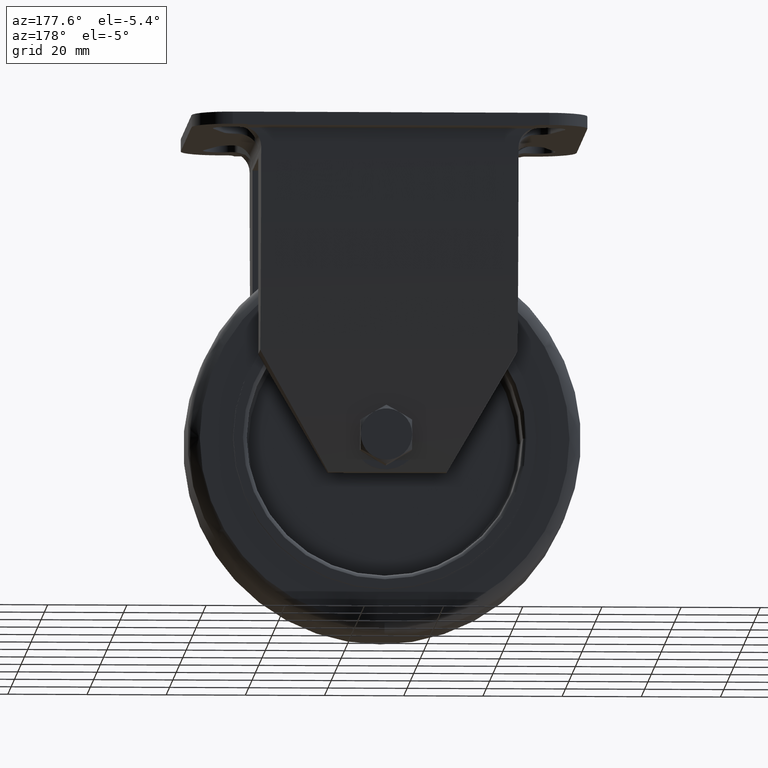
[diagram: clean part render]
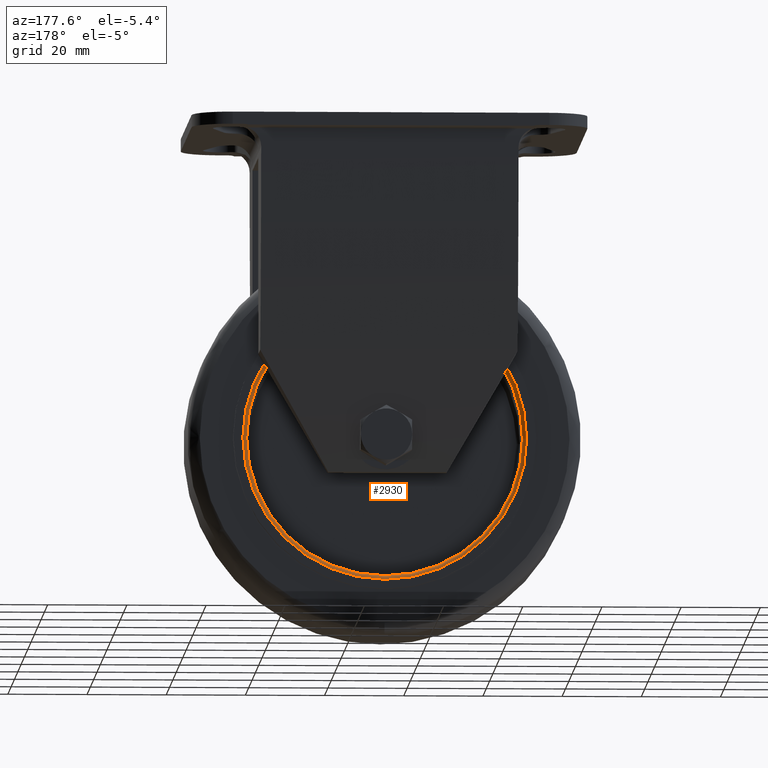
[diagram: same view with one face highlighted and labeled with its STEP entity id]
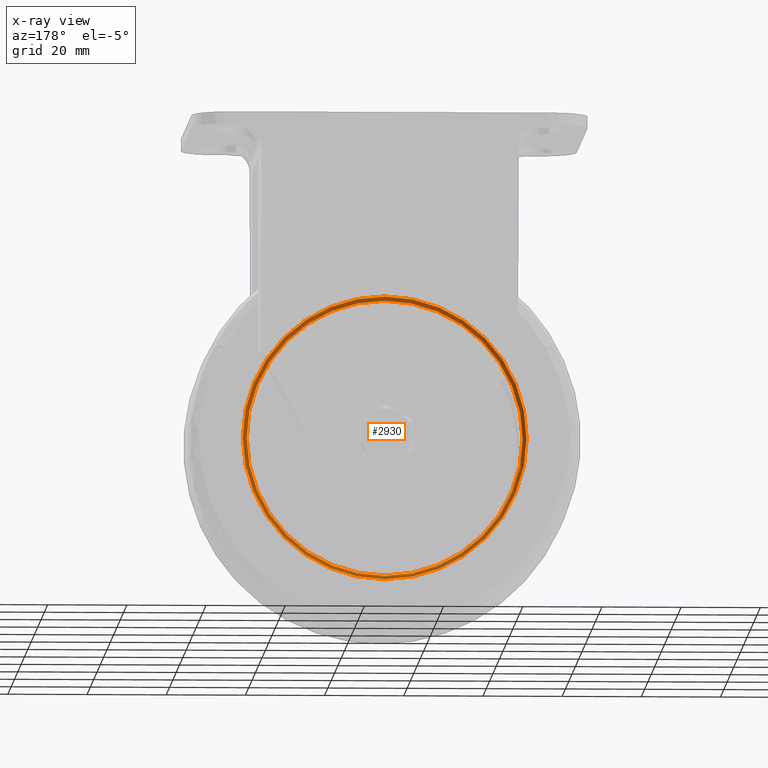
[diagram: x-ray of the same camera — body ghosted, the highlighted face saturated]
A machine part, auxiliary view. The second image highlights one B-rep face of the part: STEP entity #2930.
The next image is the same camera in x-ray: the body ghosted, the highlighted face saturated — about 0% of this face is hidden behind the body in this view.
In plain terms, the highlighted face is a freeform B-spline surface patch.
Its self-contained STEP definition (entity closure, byte-faithful):
#2605=CARTESIAN_POINT('',(-13.668300648926364,15.999999999937856,-80.075077357231748));
#2606=VERTEX_POINT('',#2605);
#2607=CARTESIAN_POINT('',(-85.331678570328222,15.999999999937819,-80.075077357231748));
#2608=VERTEX_POINT('',#2607);
#2609=CARTESIAN_POINT('',(-49.499989609626937,15.999999999937838,-80.075077357231748));
#2610=DIRECTION('',(-5.345521E-016,1.0,-1.224647E-016));
#2611=DIRECTION('',(-1.0,-5.345521E-016,6.546375E-032));
#2612=AXIS2_PLACEMENT_3D('',#2609,#2610,#2611);
#2613=CIRCLE('',#2612,35.831688960700575);
#2614=EDGE_CURVE('',#2606,#2608,#2613,.T.);
#2616=CARTESIAN_POINT('',(-49.499989609626937,15.999999999937838,-80.075077357231748));
#2617=DIRECTION('',(-5.345521E-016,1.0,-1.224647E-016));
#2618=DIRECTION('',(-1.0,-5.345521E-016,6.546375E-032));
#2619=AXIS2_PLACEMENT_3D('',#2616,#2617,#2618);
#2620=CIRCLE('',#2619,35.831688960700575);
#2621=EDGE_CURVE('',#2608,#2606,#2620,.T.);
#2626=CARTESIAN_POINT('',(-85.331678570327512,15.999999999937817,-80.075077357231748));
#2627=CARTESIAN_POINT('',(-85.201618355650098,15.999999999937817,-80.075077357231748));
#2628=CARTESIAN_POINT('',(-84.938650752984273,15.947961223822038,-80.075077357231748));
#2629=CARTESIAN_POINT('',(-84.606265658854525,15.725412911410764,-80.075077357231748));
#2630=CARTESIAN_POINT('',(-84.383717346443319,15.393027817281098,-80.075077357231748));
#2631=CARTESIAN_POINT('',(-84.331678570327512,15.130060214615238,-80.075077357231748));
#2632=CARTESIAN_POINT('',(-84.331678570327512,14.999999999937819,-80.075077357231748));
#2633=CARTESIAN_POINT('',(-85.331678570327512,15.999999999937817,-77.733664233827653));
#2634=CARTESIAN_POINT('',(-85.201618355650098,15.999999999937817,-77.742162987369866));
#2635=CARTESIAN_POINT('',(-84.938650752984273,15.947961223822038,-77.759346542311619));
#2636=CARTESIAN_POINT('',(-84.606265658854525,15.725412911410764,-77.781066166588133));
#2637=CARTESIAN_POINT('',(-84.383717346443319,15.393027817281098,-77.795608532699944));
#2638=CARTESIAN_POINT('',(-84.331678570327512,15.130060214615238,-77.799008994047355));
#2639=CARTESIAN_POINT('',(-84.331678570327512,14.999999999937819,-77.799008994047355));
#2640=CARTESIAN_POINT('',(-84.869707334477127,15.999999999937822,-73.037853442176839));
#2641=CARTESIAN_POINT('',(-84.741323961719587,15.999999999937822,-73.063396833506474));
#2642=CARTESIAN_POINT('',(-84.481746750964291,15.947961223822045,-73.115042791485024));
#2643=CARTESIAN_POINT('',(-84.153647035424513,15.725412911410778,-73.180322112702129));
#2644=CARTESIAN_POINT('',(-83.933967996606015,15.393027817281098,-73.224029857209331));
#2645=CARTESIAN_POINT('',(-83.882600146656770,15.130060214615241,-73.234250098856151));
#2646=CARTESIAN_POINT('',(-83.882600146656770,14.999999999937824,-73.234250098856151));
#2647=CARTESIAN_POINT('',(-82.817602759452768,15.999999999937824,-66.274986318681258));
#2648=CARTESIAN_POINT('',(-82.696668021390082,15.999999999937824,-66.325077253691617));
#2649=CARTESIAN_POINT('',(-82.452151139527032,15.947961223822048,-66.426355674057419));
#2650=CARTESIAN_POINT('',(-82.143087338623673,15.725412911410771,-66.554369303665482));
#2651=CARTESIAN_POINT('',(-81.936153789155838,15.393027817281105,-66.640080780317319));
#2652=CARTESIAN_POINT('',(-81.887766234404580,15.130060214615245,-66.660122812070853));
#2653=CARTESIAN_POINT('',(-81.887766234404580,14.999999999937824,-66.660122812070853));
#2654=CARTESIAN_POINT('',(-79.484803562084764,15.999999999937820,-60.039503112973506));
#2655=CARTESIAN_POINT('',(-79.375966065086061,15.999999999937820,-60.112227317803807));
#2656=CARTESIAN_POINT('',(-79.155908488394417,15.947961223822038,-60.259267747096054));
#2657=CARTESIAN_POINT('',(-78.877760695278113,15.725412911410768,-60.445123519577820));
#2658=CARTESIAN_POINT('',(-78.691526946977731,15.393027817281091,-60.569563180826890));
#2659=CARTESIAN_POINT('',(-78.647979655030184,15.130060214615241,-60.598661076926383));
#2660=CARTESIAN_POINT('',(-78.647979655030184,14.999999999937820,-60.598661076926383));
#2661=CARTESIAN_POINT('',(-75.000883819764383,15.999999999937831,-54.575346660521284));
#2662=CARTESIAN_POINT('',(-74.908321848179000,15.999999999937831,-54.667904408839206));
#2663=CARTESIAN_POINT('',(-74.721171612988286,15.947961223822052,-54.855046105042632));
#2664=CARTESIAN_POINT('',(-74.484617954249956,15.725412911410785,-55.091588970694403));
#2665=CARTESIAN_POINT('',(-74.326233542684278,15.393027817281105,-55.249966155753128));
#2666=CARTESIAN_POINT('',(-74.289198299215613,15.130060214615250,-55.286999709437787));
#2667=CARTESIAN_POINT('',(-74.289198299215613,14.999999999937833,-55.286999709437787));
#2668=CARTESIAN_POINT('',(-70.442865085410133,15.999999999937824,-50.835483371440773));
#2669=CARTESIAN_POINT('',(-70.366847600347398,15.999999999937824,-50.941615903318997));
#2670=CARTESIAN_POINT('',(-70.213148516755851,15.947961223822047,-51.156204334855119));
#2671=CARTESIAN_POINT('',(-70.018876356043606,15.725412911410777,-51.427439252358973));
#2672=CARTESIAN_POINT('',(-69.888801505279929,15.393027817281105,-51.609044487441992));
#2673=CARTESIAN_POINT('',(-69.858385925112856,15.130060214615243,-51.651509487816710));
#2674=CARTESIAN_POINT('',(-69.858385925112856,14.999999999937824,-51.651509487816710));
#2675=CARTESIAN_POINT('',(-66.418039777075748,15.999999999937838,-48.423665892380981));
#2676=CARTESIAN_POINT('',(-66.356631417589398,15.999999999937838,-48.538552728289744));
#2677=CARTESIAN_POINT('',(-66.232470396343857,15.947961223822061,-48.770841410049385));
#2678=CARTESIAN_POINT('',(-66.075533677464463,15.725412911410782,-49.064449042963922));
#2679=CARTESIAN_POINT('',(-65.970456757473741,15.393027817281109,-49.261033921077328));
#2680=CARTESIAN_POINT('',(-65.945886477631689,15.130060214615254,-49.307001631859102));
#2681=CARTESIAN_POINT('',(-65.945886477631689,14.999999999937836,-49.307001631859102));
#2682=CARTESIAN_POINT('',(-62.176473752966160,15.999999999937828,-46.417068476731934));
#2683=CARTESIAN_POINT('',(-62.130461234526251,15.999999999937828,-46.539238767543885));
#2684=CARTESIAN_POINT('',(-62.037428928707186,15.947961223822041,-46.786253802629709));
#2685=CARTESIAN_POINT('',(-61.919838201129750,15.725412911410778,-47.098475212628870));
#2686=CARTESIAN_POINT('',(-61.841105374538664,15.393027817281107,-47.307522938056913));
#2687=CARTESIAN_POINT('',(-61.822695170068698,15.130060214615249,-47.356404853463026));
#2688=CARTESIAN_POINT('',(-61.822695170068698,14.999999999937828,-47.356404853463026));
#2689=CARTESIAN_POINT('',(-56.535563655333668,15.999999999937836,-44.704858265117835));
#2690=CARTESIAN_POINT('',(-56.510026252623803,15.999999999937836,-44.833243457715191));
#2691=CARTESIAN_POINT('',(-56.458392402982895,15.947961223822066,-45.092824347988611));
#2692=CARTESIAN_POINT('',(-56.393128386430270,15.725412911410785,-45.420928714355881));
#2693=CARTESIAN_POINT('',(-56.349430889155357,15.393027817281112,-45.640610867134114));
#2694=CARTESIAN_POINT('',(-56.339213043632839,15.130060214615256,-45.691979445224845));
#2695=CARTESIAN_POINT('',(-56.339213043632839,14.999999999937838,-45.691979445224845));
#2696=CARTESIAN_POINT('',(-50.668807557031627,15.999999999937840,-44.128051783402618));
#2697=CARTESIAN_POINT('',(-50.664565035465728,15.999999999937840,-44.258530641607564));
#2698=CARTESIAN_POINT('',(-50.655987118473902,15.947961223822061,-44.522344695934905));
#2699=CARTESIAN_POINT('',(-50.645144825667273,15.725412911410793,-44.855799685794366));
#2700=CARTESIAN_POINT('',(-50.637885372673104,15.393027817281116,-45.079064346481587));
#2701=CARTESIAN_POINT('',(-50.636187884855794,15.130060214615265,-45.131270627293986));
#2702=CARTESIAN_POINT('',(-50.636187884855794,14.999999999937842,-45.131270627293986));
#2703=CARTESIAN_POINT('',(-45.982220408802604,15.999999999937842,-44.358727902536003));
#2704=CARTESIAN_POINT('',(-45.994989045467953,15.999999999937842,-44.488369463185471));
#2705=CARTESIAN_POINT('',(-46.020805839493121,15.947961223822062,-44.750490592959125));
#2706=CARTESIAN_POINT('',(-46.053437682447125,15.725412911410789,-45.081805764523821));
#2707=CARTESIAN_POINT('',(-46.075286320393140,15.393027817281116,-45.303637710691703));
#2708=CARTESIAN_POINT('',(-46.080395217271239,15.130060214615256,-45.355508977909501));
#2709=CARTESIAN_POINT('',(-46.080395217271239,14.999999999937840,-45.355508977909501));
#2710=CARTESIAN_POINT('',(-41.340802165962494,15.999999999937847,-45.046727383776911));
#2711=CARTESIAN_POINT('',(-41.370418008846151,15.999999999937847,-45.173871675589119));
#2712=CARTESIAN_POINT('',(-41.430298020757270,15.947961223822070,-45.430943599493212));
#2713=CARTESIAN_POINT('',(-41.505984999661848,15.725412911410793,-45.755876689192185));
#2714=CARTESIAN_POINT('',(-41.556661187385686,15.393027817281123,-45.973435514892365));
#2715=CARTESIAN_POINT('',(-41.568510869635759,15.130060214615263,-46.024307592509828));
#2716=CARTESIAN_POINT('',(-41.568510869635759,14.999999999937842,-46.024307592509828));
#2717=CARTESIAN_POINT('',(-35.698572981466853,15.999999999937845,-46.757596721367769));
#2718=CARTESIAN_POINT('',(-35.748668728041345,15.999999999937845,-46.878530978437354));
#2719=CARTESIAN_POINT('',(-35.849956876866266,15.947961223822066,-47.123046887784788));
#2720=CARTESIAN_POINT('',(-35.977982803026336,15.725412911410796,-47.432109459450338));
#2721=CARTESIAN_POINT('',(-36.063702512829906,15.393027817281128,-47.639042185882516));
#2722=CARTESIAN_POINT('',(-36.083746469752526,15.130060214615270,-47.687429548182216));
#2723=CARTESIAN_POINT('',(-36.083746469752526,14.999999999937849,-47.687429548182216));
#2724=CARTESIAN_POINT('',(-29.464868103749851,15.999999999937849,-50.090044391888902));
#2725=CARTESIAN_POINT('',(-29.537590665251219,15.999999999937849,-50.198882683850520));
#2726=CARTESIAN_POINT('',(-29.684627771911146,15.947961223822066,-50.418941867870572));
#2727=CARTESIAN_POINT('',(-29.870479344661007,15.725412911410796,-50.697091692613647));
#2728=CARTESIAN_POINT('',(-29.994916193981126,15.393027817281116,-50.883326801188964));
#2729=CARTESIAN_POINT('',(-30.024013432563436,15.130060214615263,-50.926874411211443));
#2730=CARTESIAN_POINT('',(-30.024013432563436,14.999999999937849,-50.926874411211443));
#2731=CARTESIAN_POINT('',(-23.999773549001400,15.999999999937849,-54.574926684672462));
#2732=CARTESIAN_POINT('',(-24.092333059070903,15.999999999937849,-54.667485957399379));
#2733=CARTESIAN_POINT('',(-24.279478317344363,15.947961223822078,-54.854630735791929));
#2734=CARTESIAN_POINT('',(-24.516025685371964,15.725412911410803,-55.091177497260951));
#2735=CARTESIAN_POINT('',(-24.674405884994687,15.393027817281132,-55.249557290762638));
#2736=CARTESIAN_POINT('',(-24.711440143578997,15.130060214615273,-55.286591454383085));
#2737=CARTESIAN_POINT('',(-24.711440143578997,14.999999999937852,-55.286591454383085));
#2738=CARTESIAN_POINT('',(-19.514993885134988,15.999999999937856,-60.039731539940519));
#2739=CARTESIAN_POINT('',(-19.623832041921467,15.999999999937856,-60.112454915637137));
#2740=CARTESIAN_POINT('',(-19.843890952632155,15.947961223822068,-60.259493668511269));
#2741=CARTESIAN_POINT('',(-20.122040431918311,15.725412911410801,-60.445347322038543));
#2742=CARTESIAN_POINT('',(-20.308275309193125,15.393027817281126,-60.569785564542414));
#2743=CARTESIAN_POINT('',(-20.351822865130288,15.130060214615273,-60.598883128894791));
#2744=CARTESIAN_POINT('',(-20.351822865130288,14.999999999937856,-60.598883128894791));
#2745=CARTESIAN_POINT('',(-16.182425398425689,15.999999999937856,-66.274492586661950));
#2746=CARTESIAN_POINT('',(-16.303359958853193,15.999999999937856,-66.324585313798053));
#2747=CARTESIAN_POINT('',(-16.547876481557289,15.947961223822077,-66.425867357647164));
#2748=CARTESIAN_POINT('',(-16.856939828491839,15.725412911410805,-66.553885567255961));
#2749=CARTESIAN_POINT('',(-17.063873074005027,15.393027817281126,-66.639600110445585));
#2750=CARTESIAN_POINT('',(-17.112260557682156,15.130060214615273,-66.659642859251846));
#2751=CARTESIAN_POINT('',(-17.112260557682156,14.999999999937851,-66.659642859251846));
#2752=CARTESIAN_POINT('',(-14.130257902312593,15.999999999937856,-73.039599943286973));
#2753=CARTESIAN_POINT('',(-14.258641325823032,15.999999999937856,-73.065136995247286));
#2754=CARTESIAN_POINT('',(-14.518218639195251,15.947961223822082,-73.116770135710880));
#2755=CARTESIAN_POINT('',(-14.846318484440333,15.725412911410800,-73.182033255879318));
#2756=CARTESIAN_POINT('',(-15.065997610103000,15.393027817281133,-73.225730152980617));
#2757=CARTESIAN_POINT('',(-15.117365480359144,15.130060214615273,-73.235947858163669));
#2758=CARTESIAN_POINT('',(-15.117365480359144,14.999999999937856,-73.235947858163669));
#2759=CARTESIAN_POINT('',(-13.437322022233243,15.999999999937854,-80.075077357231748));
#2760=CARTESIAN_POINT('',(-13.568220632494153,15.999999999937854,-80.075077357231748));
#2761=CARTESIAN_POINT('',(-13.832883379806834,15.947961223822075,-80.075077357231706));
#2762=CARTESIAN_POINT('',(-14.167411098378789,15.725412911410803,-80.075077357231748));
#2763=CARTESIAN_POINT('',(-14.391394004164368,15.393027817281125,-80.075077357231720));
#2764=CARTESIAN_POINT('',(-14.443768233209969,15.130060214615273,-80.075077357231748));
#2765=CARTESIAN_POINT('',(-14.443768233209969,14.999999999937852,-80.075077357231748));
#2766=CARTESIAN_POINT('',(-14.130257902312595,15.999999999937856,-87.110554771176538));
#2767=CARTESIAN_POINT('',(-14.258641325823035,15.999999999937856,-87.085017719216211));
#2768=CARTESIAN_POINT('',(-14.518218639195251,15.947961223822078,-87.033384578752688));
#2769=CARTESIAN_POINT('',(-14.846318484440339,15.725412911410810,-86.968121458584164));
#2770=CARTESIAN_POINT('',(-15.065997610103008,15.393027817281135,-86.924424561482923));
#2771=CARTESIAN_POINT('',(-15.117365480359144,15.130060214615273,-86.914206856299842));
#2772=CARTESIAN_POINT('',(-15.117365480359144,14.999999999937856,-86.914206856299842));
#2773=CARTESIAN_POINT('',(-16.182425398425675,15.999999999937849,-93.875662127801505));
#2774=CARTESIAN_POINT('',(-16.303359958853186,15.999999999937849,-93.825569400665429));
#2775=CARTESIAN_POINT('',(-16.547876481557289,15.947961223822073,-93.724287356816376));
#2776=CARTESIAN_POINT('',(-16.856939828491814,15.725412911410793,-93.596269147207465));
#2777=CARTESIAN_POINT('',(-17.063873074005013,15.393027817281126,-93.510554604017869));
#2778=CARTESIAN_POINT('',(-17.112260557682141,15.130060214615263,-93.490511855211622));
#2779=CARTESIAN_POINT('',(-17.112260557682141,14.999999999937849,-93.490511855211622));
#2780=CARTESIAN_POINT('',(-19.514993885134995,15.999999999937852,-100.110423174523020));
#2781=CARTESIAN_POINT('',(-19.623832041921467,15.999999999937852,-100.037699798826370));
#2782=CARTESIAN_POINT('',(-19.843890952632144,15.947961223822073,-99.890661045952214));
#2783=CARTESIAN_POINT('',(-20.122040431918322,15.725412911410807,-99.704807392424982));
#2784=CARTESIAN_POINT('',(-20.308275309193121,15.393027817281133,-99.580369149921040));
#2785=CARTESIAN_POINT('',(-20.351822865130295,15.130060214615273,-99.551271585568699));
#2786=CARTESIAN_POINT('',(-20.351822865130295,14.999999999937852,-99.551271585568699));
#2787=CARTESIAN_POINT('',(-23.999773549001382,15.999999999937842,-105.575228029790990));
#2788=CARTESIAN_POINT('',(-24.092333059070892,15.999999999937842,-105.482668757064080));
#2789=CARTESIAN_POINT('',(-24.279478317344349,15.947961223822068,-105.295523978671580));
#2790=CARTESIAN_POINT('',(-24.516025685371964,15.725412911410789,-105.058977217202500));
#2791=CARTESIAN_POINT('',(-24.674405884994677,15.393027817281116,-104.900597423700900));
#2792=CARTESIAN_POINT('',(-24.711440143578983,15.130060214615263,-104.863563260080400));
#2793=CARTESIAN_POINT('',(-24.711440143578983,14.999999999937842,-104.863563260080400));
#2794=CARTESIAN_POINT('',(-29.464868103749854,15.999999999937845,-110.060110322574560));
#2795=CARTESIAN_POINT('',(-29.537590665251226,15.999999999937845,-109.951272030612980));
#2796=CARTESIAN_POINT('',(-29.684627771911156,15.947961223822066,-109.731212846592880));
#2797=CARTESIAN_POINT('',(-29.870479344661007,15.725412911410789,-109.453063021849830));
#2798=CARTESIAN_POINT('',(-29.994916193981126,15.393027817281119,-109.266827913274500));
#2799=CARTESIAN_POINT('',(-30.024013432563436,15.130060214615259,-109.223280303252000));
#2800=CARTESIAN_POINT('',(-30.024013432563436,14.999999999937842,-109.223280303252000));
#2801=CARTESIAN_POINT('',(-35.698572981466825,15.999999999937845,-113.392557993095750));
#2802=CARTESIAN_POINT('',(-35.748668728041302,15.999999999937845,-113.271623736026110));
#2803=CARTESIAN_POINT('',(-35.849956876866237,15.947961223822062,-113.027107826678720));
#2804=CARTESIAN_POINT('',(-35.977982803026322,15.725412911410785,-112.718045255013210));
#2805=CARTESIAN_POINT('',(-36.063702512829849,15.393027817281121,-112.511112528580980));
#2806=CARTESIAN_POINT('',(-36.083746469752491,15.130060214615265,-112.462725166281320));
#2807=CARTESIAN_POINT('',(-36.083746469752491,14.999999999937842,-112.462725166281320));
#2808=CARTESIAN_POINT('',(-41.340802165962486,15.999999999937829,-115.103427330686540));
#2809=CARTESIAN_POINT('',(-41.370418008846158,15.999999999937829,-114.976283038874360));
#2810=CARTESIAN_POINT('',(-41.430298020757270,15.947961223822055,-114.719211114970320));
#2811=CARTESIAN_POINT('',(-41.505984999661827,15.725412911410794,-114.394278025271220));
#2812=CARTESIAN_POINT('',(-41.556661187385657,15.393027817281114,-114.176719199571040));
#2813=CARTESIAN_POINT('',(-41.568510869635730,15.130060214615249,-114.125847121953580));
#2814=CARTESIAN_POINT('',(-41.568510869635730,14.999999999937833,-114.125847121953580));
#2815=CARTESIAN_POINT('',(-45.982220408802604,15.999999999937835,-115.791426811927490));
#2816=CARTESIAN_POINT('',(-45.994989045467939,15.999999999937835,-115.661785251278050));
#2817=CARTESIAN_POINT('',(-46.020805839493121,15.947961223822055,-115.399664121504330));
#2818=CARTESIAN_POINT('',(-46.053437682447139,15.725412911410773,-115.068348949939680));
#2819=CARTESIAN_POINT('',(-46.075286320393133,15.393027817281109,-114.846517003771850));
#2820=CARTESIAN_POINT('',(-46.080395217271231,15.130060214615256,-114.794645736554020));
#2821=CARTESIAN_POINT('',(-46.080395217271231,14.999999999937836,-114.794645736554020));
#2822=CARTESIAN_POINT('',(-50.668807557031620,15.999999999937835,-116.022102931060860));
#2823=CARTESIAN_POINT('',(-50.664565035465735,15.999999999937835,-115.891624072855930));
#2824=CARTESIAN_POINT('',(-50.655987118473924,15.947961223822045,-115.627810018528710));
#2825=CARTESIAN_POINT('',(-50.645144825667231,15.725412911410789,-115.294355028669090));
#2826=CARTESIAN_POINT('',(-50.637885372673118,15.393027817281110,-115.071090367981870));
#2827=CARTESIAN_POINT('',(-50.636187884855786,15.130060214615250,-115.018884087169510));
#2828=CARTESIAN_POINT('',(-50.636187884855786,14.999999999937829,-115.018884087169510));
#2829=CARTESIAN_POINT('',(-56.535563655333661,15.999999999937824,-115.445296449345680));
#2830=CARTESIAN_POINT('',(-56.510026252623803,15.999999999937824,-115.316911256748300));
#2831=CARTESIAN_POINT('',(-56.458392402982881,15.947961223822050,-115.057330366474870));
#2832=CARTESIAN_POINT('',(-56.393128386430291,15.725412911410775,-114.729226000107590));
#2833=CARTESIAN_POINT('',(-56.349430889155343,15.393027817281109,-114.509543847329330));
#2834=CARTESIAN_POINT('',(-56.339213043632839,15.130060214615245,-114.458175269238640));
#2835=CARTESIAN_POINT('',(-56.339213043632839,14.999999999937831,-114.458175269238640));
#2836=CARTESIAN_POINT('',(-62.176473752966174,15.999999999937828,-113.733086237731580));
#2837=CARTESIAN_POINT('',(-62.130461234526280,15.999999999937828,-113.610915946919630));
#2838=CARTESIAN_POINT('',(-62.037428928707193,15.947961223822055,-113.363900911833890));
#2839=CARTESIAN_POINT('',(-61.919838201129743,15.725412911410787,-113.051679501834610));
#2840=CARTESIAN_POINT('',(-61.841105374538706,15.393027817281103,-112.842631776406680));
#2841=CARTESIAN_POINT('',(-61.822695170068727,15.130060214615252,-112.793749861000480));
#2842=CARTESIAN_POINT('',(-61.822695170068727,14.999999999937828,-112.793749861000480));
#2843=CARTESIAN_POINT('',(-66.418039777075748,15.999999999937824,-111.726488822082500));
#2844=CARTESIAN_POINT('',(-66.356631417589384,15.999999999937824,-111.611601986173720));
#2845=CARTESIAN_POINT('',(-66.232470396343814,15.947961223822041,-111.379313304414100));
#2846=CARTESIAN_POINT('',(-66.075533677464477,15.725412911410769,-111.085705671499600));
#2847=CARTESIAN_POINT('',(-65.970456757473727,15.393027817281098,-110.889120793386130));
#2848=CARTESIAN_POINT('',(-65.945886477631660,15.130060214615238,-110.843153082604420));
#2849=CARTESIAN_POINT('',(-65.945886477631660,14.999999999937824,-110.843153082604420));
#2850=CARTESIAN_POINT('',(-70.442865085410105,15.999999999937820,-109.314671343022770));
#2851=CARTESIAN_POINT('',(-70.366847600347384,15.999999999937820,-109.208538811144560));
#2852=CARTESIAN_POINT('',(-70.213148516755851,15.947961223822045,-108.993950379608480));
#2853=CARTESIAN_POINT('',(-70.018876356043634,15.725412911410775,-108.722715462104470));
#2854=CARTESIAN_POINT('',(-69.888801505279901,15.393027817281098,-108.541110227021630));
#2855=CARTESIAN_POINT('',(-69.858385925112842,15.130060214615245,-108.498645226646810));
#2856=CARTESIAN_POINT('',(-69.858385925112842,14.999999999937824,-108.498645226646810));
#2857=CARTESIAN_POINT('',(-75.000883819764326,15.999999999937820,-105.574808053942220));
#2858=CARTESIAN_POINT('',(-74.908321848178929,15.999999999937820,-105.482250305624310));
#2859=CARTESIAN_POINT('',(-74.721171612988201,15.947961223822041,-105.295108609420890));
#2860=CARTESIAN_POINT('',(-74.484617954249899,15.725412911410769,-105.058565743769110));
#2861=CARTESIAN_POINT('',(-74.326233542684236,15.393027817281100,-104.900188558710400));
#2862=CARTESIAN_POINT('',(-74.289198299215542,15.130060214615236,-104.863155005025700));
#2863=CARTESIAN_POINT('',(-74.289198299215542,14.999999999937817,-104.863155005025700));
#2864=CARTESIAN_POINT('',(-79.484803562084807,15.999999999937820,-100.110651601489960));
#2865=CARTESIAN_POINT('',(-79.375966065086089,15.999999999937820,-100.037927396659650));
#2866=CARTESIAN_POINT('',(-79.155908488394488,15.947961223822034,-99.890886967367436));
#2867=CARTESIAN_POINT('',(-78.877760695278170,15.725412911410768,-99.705031194885620));
#2868=CARTESIAN_POINT('',(-78.691526946977760,15.393027817281087,-99.580591533636621));
#2869=CARTESIAN_POINT('',(-78.647979655030241,15.130060214615238,-99.551493637537092));
#2870=CARTESIAN_POINT('',(-78.647979655030241,14.999999999937820,-99.551493637537092));
#2871=CARTESIAN_POINT('',(-82.817602759452726,15.999999999937813,-93.875168395782239));
#2872=CARTESIAN_POINT('',(-82.696668021390053,15.999999999937813,-93.825077460771894));
#2873=CARTESIAN_POINT('',(-82.452151139526947,15.947961223822034,-93.723799040406078));
#2874=CARTESIAN_POINT('',(-82.143087338623602,15.725412911410761,-93.595785410798058));
#2875=CARTESIAN_POINT('',(-81.936153789155810,15.393027817281100,-93.510073934146149));
#2876=CARTESIAN_POINT('',(-81.887766234404495,15.130060214615234,-93.490031902392673));
#2877=CARTESIAN_POINT('',(-81.887766234404495,14.999999999937815,-93.490031902392673));
#2878=CARTESIAN_POINT('',(-84.869707334477141,15.999999999937820,-87.112301272286714));
#2879=CARTESIAN_POINT('',(-84.741323961719587,15.999999999937820,-87.086757880957109));
#2880=CARTESIAN_POINT('',(-84.481746750964291,15.947961223822052,-87.035111922978530));
#2881=CARTESIAN_POINT('',(-84.153647035424527,15.725412911410775,-86.969832601761425));
#2882=CARTESIAN_POINT('',(-83.933967996605986,15.393027817281101,-86.926124857254280));
#2883=CARTESIAN_POINT('',(-83.882600146656813,15.130060214615243,-86.915904615607417));
#2884=CARTESIAN_POINT('',(-83.882600146656813,14.999999999937820,-86.915904615607417));
#2885=CARTESIAN_POINT('',(-85.331678570327512,15.999999999937817,-82.416490480635872));
#2886=CARTESIAN_POINT('',(-85.201618355650098,15.999999999937817,-82.407991727093645));
#2887=CARTESIAN_POINT('',(-84.938650752984273,15.947961223822038,-82.390808172151907));
#2888=CARTESIAN_POINT('',(-84.606265658854525,15.725412911410764,-82.369088547875378));
#2889=CARTESIAN_POINT('',(-84.383717346443319,15.393027817281098,-82.354546181763581));
#2890=CARTESIAN_POINT('',(-84.331678570327512,15.130060214615238,-82.351145720416156));
#2891=CARTESIAN_POINT('',(-84.331678570327512,14.999999999937819,-82.351145720416156));
#2892=CARTESIAN_POINT('',(-85.331678570327512,15.999999999937817,-80.075077357231763));
#2893=CARTESIAN_POINT('',(-85.201618355650098,15.999999999937817,-80.075077357231763));
#2894=CARTESIAN_POINT('',(-84.938650752984273,15.947961223822038,-80.075077357231777));
#2895=CARTESIAN_POINT('',(-84.606265658854525,15.725412911410764,-80.075077357231748));
#2896=CARTESIAN_POINT('',(-84.383717346443319,15.393027817281098,-80.075077357231763));
#2897=CARTESIAN_POINT('',(-84.331678570327512,15.130060214615238,-80.075077357231763));
#2898=CARTESIAN_POINT('',(-84.331678570327512,14.999999999937819,-80.075077357231763));
#2899=B_SPLINE_SURFACE_WITH_KNOTS('',3,3,((#2626,#2633,#2640,#2647,#2654,#2661,#2668,#2675,#2682,#2689,#2696,#2703,#2710,#2717,#2724,#2731,#2738,#2745,#2752,#2759,#2766,#2773,#2780,#2787,#2794,#2801,#2808,#2815,#2822,#2829,#2836,#2843,#2850,#2857,#2864,#2871,#2878,#2885,#2892),(#2627,#2634,#2641,#2648,#2655,#2662,#2669,#2676,#2683,#2690,#2697,#2704,#2711,#2718,#2725,#2732,#2739,#2746,#2753,#2760,#2767,#2774,#2781,#2788,#2795,#2802,#2809,#2816,#2823,#2830,#2837,#2844,#2851,#2858,#2865,#2872,#2879,#2886,#2893),(#2628,#2635,#2642,#2649,#2656,#2663,#2670,#2677,#2684,#2691,#2698,#2705,#2712,#2719,#2726,#2733,#2740,#2747,#2754,#2761,#2768,#2775,#2782,#2789,#2796,#2803,#2810,#2817,#2824,#2831,#2838,#2845,#2852,#2859,#2866,#2873,#2880,#2887,#2894),(#2629,#2636,#2643,#2650,#2657,#2664,#2671,#2678,#2685,#2692,#2699,#2706,#2713,#2720,#2727,#2734,#2741,#2748,#2755,#2762,#2769,#2776,#2783,#2790,#2797,#2804,#2811,#2818,#2825,#2832,#2839,#2846,#2853,#2860,#2867,#2874,#2881,#2888,#2895),(#2630,#2637,#2644,#2651,#2658,#2665,#2672,#2679,#2686,#2693,#2700,#2707,#2714,#2721,#2728,#2735,#2742,#2749,#2756,#2763,#2770,#2777,#2784,#2791,#2798,#2805,#2812,#2819,#2826,#2833,#2840,#2847,#2854,#2861,#2868,#2875,#2882,#2889,#2896),(#2631,#2638,#2645,#2652,#2659,#2666,#2673,#2680,#2687,#2694,#2701,#2708,#2715,#2722,#2729,#2736,#2743,#2750,#2757,#2764,#2771,#2778,#2785,#2792,#2799,#2806,#2813,#2820,#2827,#2834,#2841,#2848,#2855,#2862,#2869,#2876,#2883,#2890,#2897),(#2632,#2639,#2646,#2653,#2660,#2667,#2674,#2681,#2688,#2695,#2702,#2709,#2716,#2723,#2730,#2737,#2744,#2751,#2758,#2765,#2772,#2779,#2786,#2793,#2800,#2807,#2814,#2821,#2828,#2835,#2842,#2849,#2856,#2863,#2870,#2877,#2884,#2891,#2898)),.UNSPECIFIED.,.F.,.T.,.U.,(4,1,1,1,4),(4,1,1,1,1,1,1,1,1,1,1,1,1,1,1,1,1,1,1,1,1,1,1,1,1,1,1,1,1,1,1,1,1,1,1,1,4),(0.0,0.390180644032254,0.780361288064515,1.170541932096772,1.560722576129028),(0.0,6.906082854049586,13.812165708099181,20.718248562148769,27.624331416198356,34.530414270247945,37.987620053045845,41.444825835843766,48.350908689893359,55.256991543942959,58.714197326740859,62.171403109538758,69.077485963588359,75.983568817637931,82.889651671687531,89.795734525737132,96.701817379786704,103.607900233836290,110.513983087885890,117.420065941935490,124.326148795985060,131.232231650034630,138.138314504084240,145.044397358133840,151.950480212183410,158.856563066233010,162.313768849030940,165.770974631828810,172.677057485878410,179.583140339928010,183.040346122725910,186.497551905523840,193.403634759573440,200.309717613622980,207.215800467672580,214.121883321722180,221.027966175771780),.UNSPECIFIED.);
#2900=CARTESIAN_POINT('',(-84.331678570328222,14.999999999937819,-80.075077357231748));
#2901=VERTEX_POINT('',#2900);
#2902=CARTESIAN_POINT('',(-85.331678570328222,14.999999999937819,-80.075077357231748));
#2903=DIRECTION('',(0.0,-1.224647E-016,-1.0));
#2904=DIRECTION('',(0.0,1.0,-1.224647E-016));
#2905=AXIS2_PLACEMENT_3D('',#2902,#2903,#2904);
#2906=CIRCLE('',#2905,0.999999999999998);
#2907=EDGE_CURVE('',#2608,#2901,#2906,.T.);
#2908=ORIENTED_EDGE('',*,*,#2907,.T.);
#2909=CARTESIAN_POINT('',(-14.668300648926362,14.999999999937854,-80.075077357231748));
#2910=VERTEX_POINT('',#2909);
#2911=CARTESIAN_POINT('',(-49.499989609626937,14.999999999937836,-80.075077357231748));
#2912=DIRECTION('',(-5.163578E-016,1.0,-1.224647E-016));
#2913=DIRECTION('',(-1.0,-5.163578E-016,6.323559E-032));
#2914=AXIS2_PLACEMENT_3D('',#2911,#2912,#2913);
#2915=CIRCLE('',#2914,34.831688960700575);
#2916=EDGE_CURVE('',#2910,#2901,#2915,.T.);
#2917=ORIENTED_EDGE('',*,*,#2916,.F.);
#2918=CARTESIAN_POINT('',(-49.499989609626937,14.999999999937836,-80.075077357231748));
#2919=DIRECTION('',(-5.163578E-016,1.0,-1.224647E-016));
#2920=DIRECTION('',(-1.0,-5.163578E-016,6.323559E-032));
#2921=AXIS2_PLACEMENT_3D('',#2918,#2919,#2920);
#2922=CIRCLE('',#2921,34.831688960700575);
#2923=EDGE_CURVE('',#2901,#2910,#2922,.T.);
#2924=ORIENTED_EDGE('',*,*,#2923,.F.);
#2925=ORIENTED_EDGE('',*,*,#2907,.F.);
#2926=ORIENTED_EDGE('',*,*,#2621,.T.);
#2927=ORIENTED_EDGE('',*,*,#2614,.T.);
#2928=EDGE_LOOP('',(#2908,#2917,#2924,#2925,#2926,#2927));
#2929=FACE_OUTER_BOUND('',#2928,.T.);
#2930=ADVANCED_FACE('',(#2929),#2899,.F.);